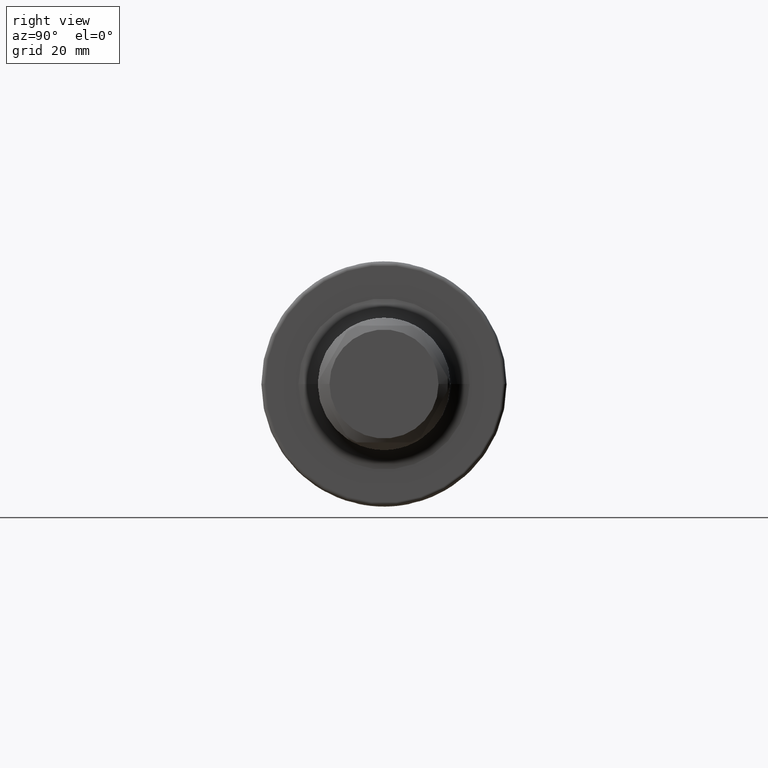
[diagram: clean part render]
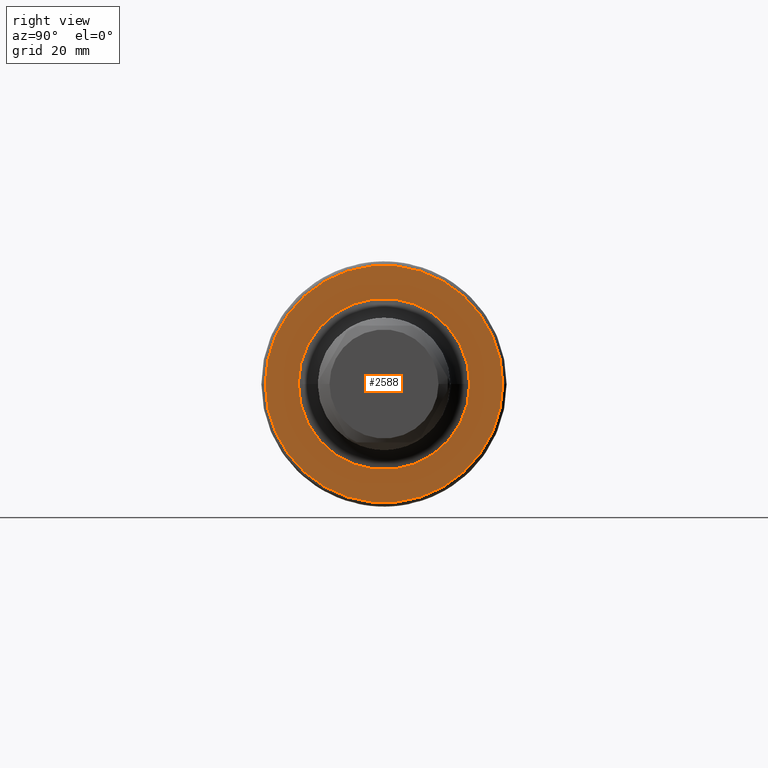
[diagram: same view with one face highlighted and labeled with its STEP entity id]
A machine part, right view. The second image highlights one B-rep face of the part: STEP entity #2588.
In plain terms, the highlighted planar face has unit normal (1, 0, 0).
Its self-contained STEP definition (entity closure, byte-faithful):
#816=CARTESIAN_POINT('',(2.7E1,0.E0,0.E0));
#817=DIRECTION('',(1.E0,0.E0,0.E0));
#818=DIRECTION('',(0.E0,1.E0,0.E0));
#819=AXIS2_PLACEMENT_3D('',#816,#817,#818);
#831=CARTESIAN_POINT('',(2.7E1,0.E0,0.E0));
#832=DIRECTION('',(-1.E0,0.E0,0.E0));
#833=DIRECTION('',(0.E0,1.E0,0.E0));
#834=AXIS2_PLACEMENT_3D('',#831,#832,#833);
#836=CARTESIAN_POINT('',(2.7E1,0.E0,0.E0));
#837=DIRECTION('',(1.E0,0.E0,0.E0));
#838=DIRECTION('',(0.E0,-1.E0,0.E0));
#839=AXIS2_PLACEMENT_3D('',#836,#837,#838);
#841=CARTESIAN_POINT('',(2.7E1,0.E0,0.E0));
#842=DIRECTION('',(1.E0,0.E0,0.E0));
#843=DIRECTION('',(0.E0,1.E0,0.E0));
#844=AXIS2_PLACEMENT_3D('',#841,#842,#843);
#1360=CARTESIAN_POINT('',(2.7E1,3.04875E1,0.E0));
#1361=VERTEX_POINT('',#1360);
#1362=CARTESIAN_POINT('',(2.7E1,-3.04875E1,0.E0));
#1363=VERTEX_POINT('',#1362);
#1465=CARTESIAN_POINT('',(2.7E1,-2.2E1,0.E0));
#1466=CARTESIAN_POINT('',(2.7E1,2.2E1,0.E0));
#1467=VERTEX_POINT('',#1465);
#1468=VERTEX_POINT('',#1466);
#2573=CARTESIAN_POINT('',(2.7E1,0.E0,0.E0));
#2574=DIRECTION('',(1.E0,0.E0,0.E0));
#2575=DIRECTION('',(0.E0,-1.E0,0.E0));
#2576=AXIS2_PLACEMENT_3D('',#2573,#2574,#2575);
#2577=PLANE('',#2576);
#2578=ORIENTED_EDGE('',*,*,#2568,.T.);
#2579=ORIENTED_EDGE('',*,*,#2552,.F.);
#2580=EDGE_LOOP('',(#2578,#2579));
#2581=FACE_OUTER_BOUND('',#2580,.F.);
#2583=ORIENTED_EDGE('',*,*,#2582,.T.);
#2585=ORIENTED_EDGE('',*,*,#2584,.T.);
#2586=EDGE_LOOP('',(#2583,#2585));
#2587=FACE_BOUND('',#2586,.F.);
#2588=ADVANCED_FACE('',(#2581,#2587),#2577,.T.);
#820=CIRCLE('',#819,3.04875E1);
#835=CIRCLE('',#834,3.04875E1);
#840=CIRCLE('',#839,2.2E1);
#845=CIRCLE('',#844,2.2E1);
#2552=EDGE_CURVE('',#1361,#1363,#820,.T.);
#2568=EDGE_CURVE('',#1361,#1363,#835,.T.);
#2582=EDGE_CURVE('',#1467,#1468,#840,.T.);
#2584=EDGE_CURVE('',#1468,#1467,#845,.T.);